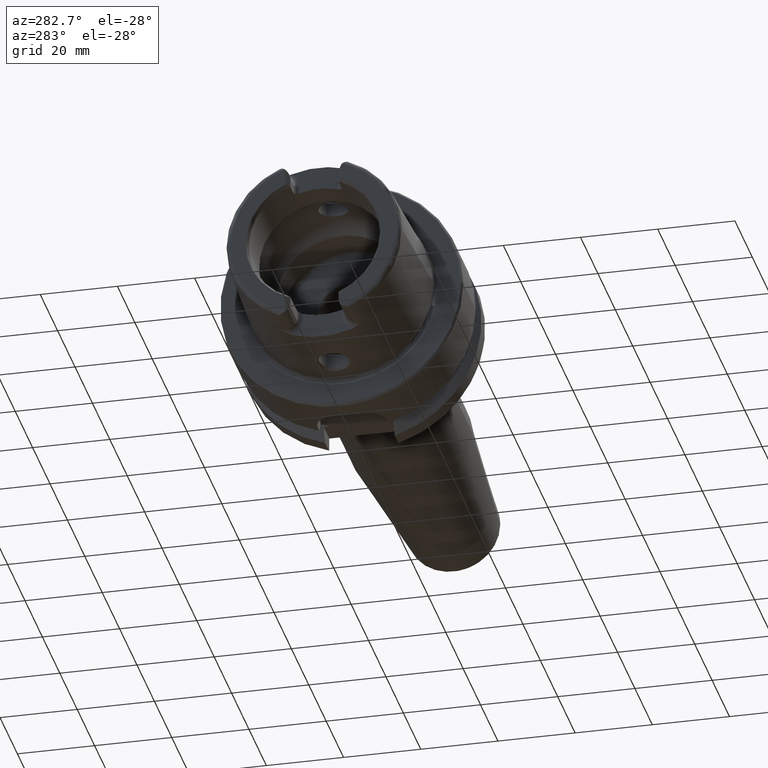
[diagram: clean part render]
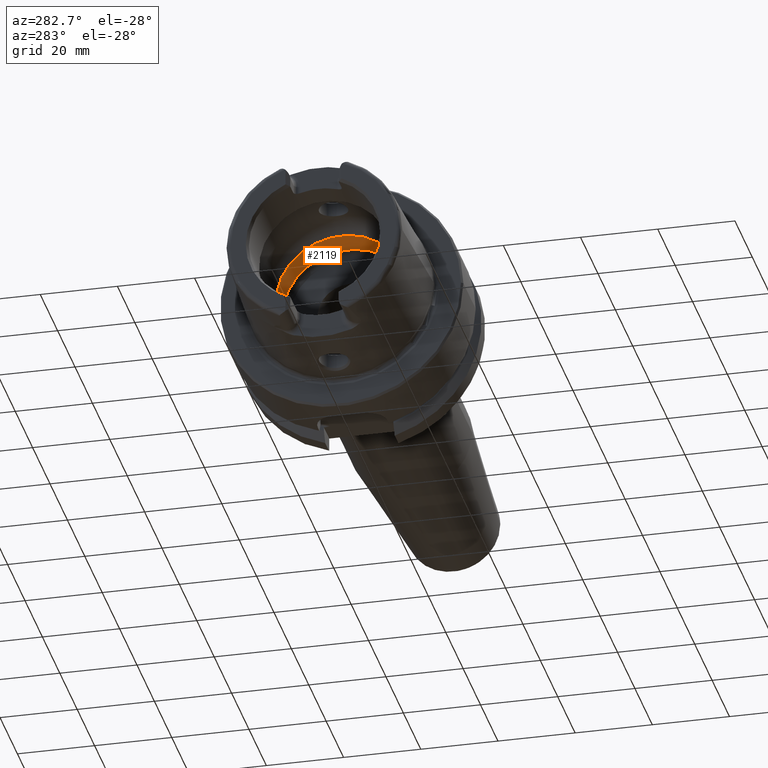
[diagram: same view with one face highlighted and labeled with its STEP entity id]
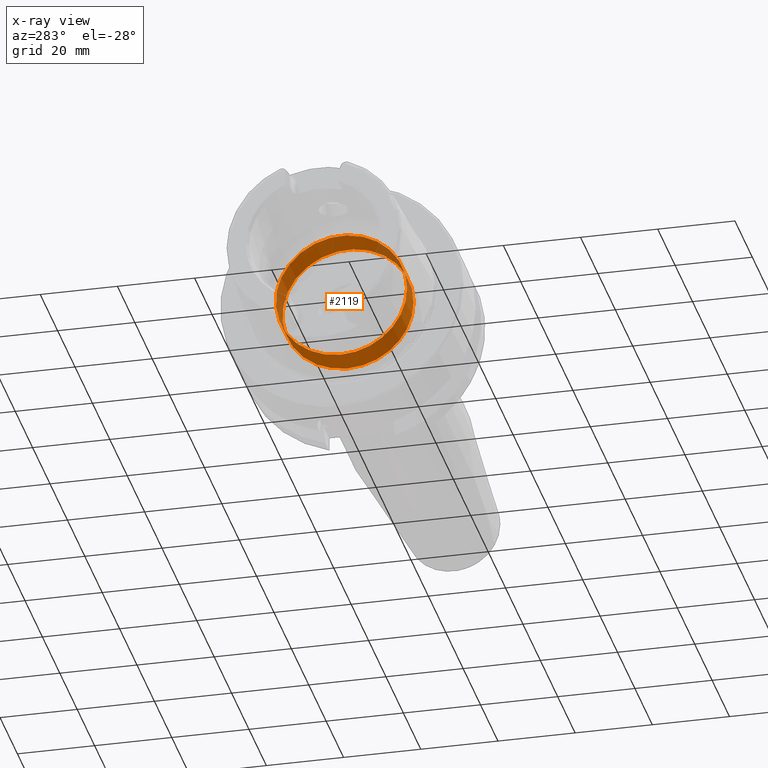
[diagram: x-ray of the same camera — body ghosted, the highlighted face saturated]
A machine part, auxiliary view. The second image highlights one B-rep face of the part: STEP entity #2119.
The next image is the same camera in x-ray: the body ghosted, the highlighted face saturated — about 14% of this face is hidden behind the body in this view.
In plain terms, the highlighted cylindrical surface (bore or boss wall) has radius 17 mm, axis along (-1, 0, 0).
Its self-contained STEP definition (entity closure, byte-faithful):
#212=CYLINDRICAL_SURFACE('',#2389,17.);
#326=FACE_OUTER_BOUND('',#459,.T.);
#459=EDGE_LOOP('',(#1946,#1947,#1948,#1949,#1950,#1951));
#573=LINE('',#4481,#683);
#683=VECTOR('',#2993,17.);
#736=CIRCLE('',#2243,17.);
#737=CIRCLE('',#2244,17.);
#805=CIRCLE('',#2387,17.);
#806=CIRCLE('',#2388,17.);
#918=VERTEX_POINT('',#3835);
#919=VERTEX_POINT('',#3836);
#1016=VERTEX_POINT('',#4475);
#1017=VERTEX_POINT('',#4477);
#1159=EDGE_CURVE('',#918,#919,#736,.T.);
#1160=EDGE_CURVE('',#919,#918,#737,.T.);
#1329=EDGE_CURVE('',#1016,#1017,#805,.T.);
#1330=EDGE_CURVE('',#1017,#1016,#806,.T.);
#1331=EDGE_CURVE('',#1017,#918,#573,.T.);
#1946=ORIENTED_EDGE('',*,*,#1330,.F.);
#1947=ORIENTED_EDGE('',*,*,#1331,.T.);
#1948=ORIENTED_EDGE('',*,*,#1159,.T.);
#1949=ORIENTED_EDGE('',*,*,#1160,.T.);
#1950=ORIENTED_EDGE('',*,*,#1331,.F.);
#1951=ORIENTED_EDGE('',*,*,#1329,.F.);
#2119=ADVANCED_FACE('',(#326),#212,.F.);
#2243=AXIS2_PLACEMENT_3D('',#3837,#2642,#2643);
#2244=AXIS2_PLACEMENT_3D('',#3838,#2644,#2645);
#2387=AXIS2_PLACEMENT_3D('',#4478,#2987,#2988);
#2388=AXIS2_PLACEMENT_3D('',#4479,#2989,#2990);
#2389=AXIS2_PLACEMENT_3D('',#4480,#2991,#2992);
#2642=DIRECTION('center_axis',(-1.,0.,0.));
#2643=DIRECTION('ref_axis',(0.,0.,1.));
#2644=DIRECTION('center_axis',(-1.,0.,0.));
#2645=DIRECTION('ref_axis',(0.,0.,1.));
#2987=DIRECTION('center_axis',(-1.,0.,0.));
#2988=DIRECTION('ref_axis',(0.,0.,1.));
#2989=DIRECTION('center_axis',(-1.,0.,0.));
#2990=DIRECTION('ref_axis',(0.,0.,1.));
#2991=DIRECTION('center_axis',(-1.,0.,0.));
#2992=DIRECTION('ref_axis',(0.,1.,0.));
#2993=DIRECTION('',(-1.,0.,0.));
#3835=CARTESIAN_POINT('',(0.,-17.,2.0818995585505E-15));
#3836=CARTESIAN_POINT('',(0.,-2.0818995585505E-15,-17.));
#3837=CARTESIAN_POINT('Origin',(0.,0.,0.));
#3838=CARTESIAN_POINT('Origin',(0.,0.,0.));
#4475=CARTESIAN_POINT('',(7.67084380241115,-2.0818995585505E-15,-17.));
#4477=CARTESIAN_POINT('',(7.67084380241115,-17.,2.0818995585505E-15));
#4478=CARTESIAN_POINT('Origin',(7.67084380241115,0.,0.));
#4479=CARTESIAN_POINT('Origin',(7.67084380241115,0.,0.));
#4480=CARTESIAN_POINT('Origin',(3.83542190120557,0.,0.));
#4481=CARTESIAN_POINT('',(3.83542190120557,-17.,2.0818995585505E-15));